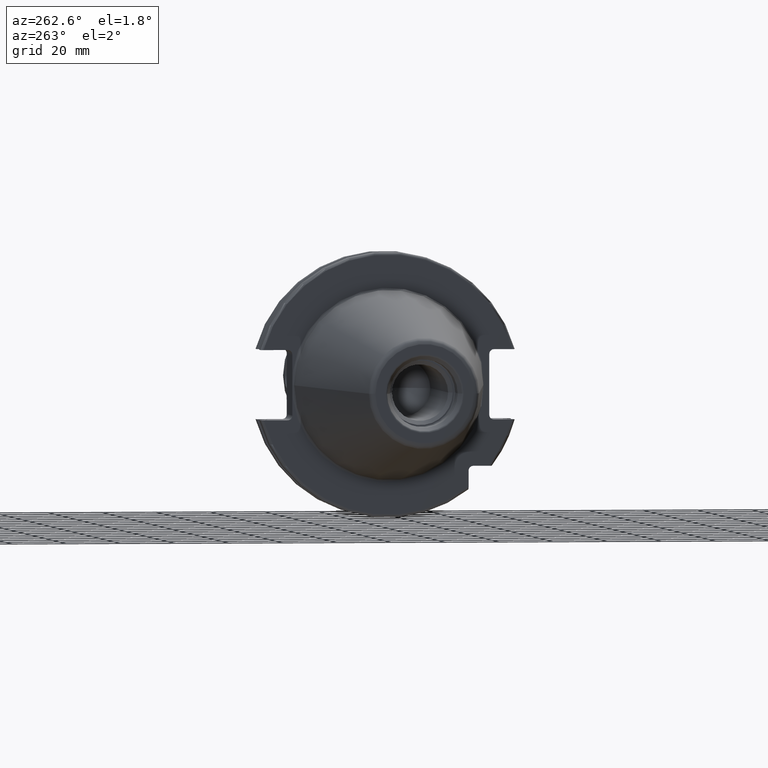
[diagram: clean part render]
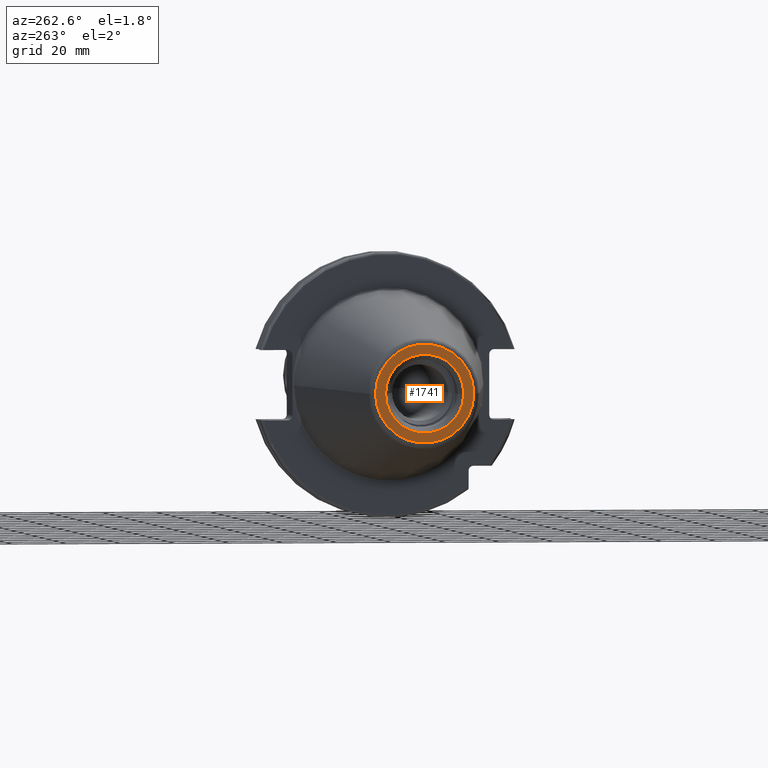
[diagram: same view with one face highlighted and labeled with its STEP entity id]
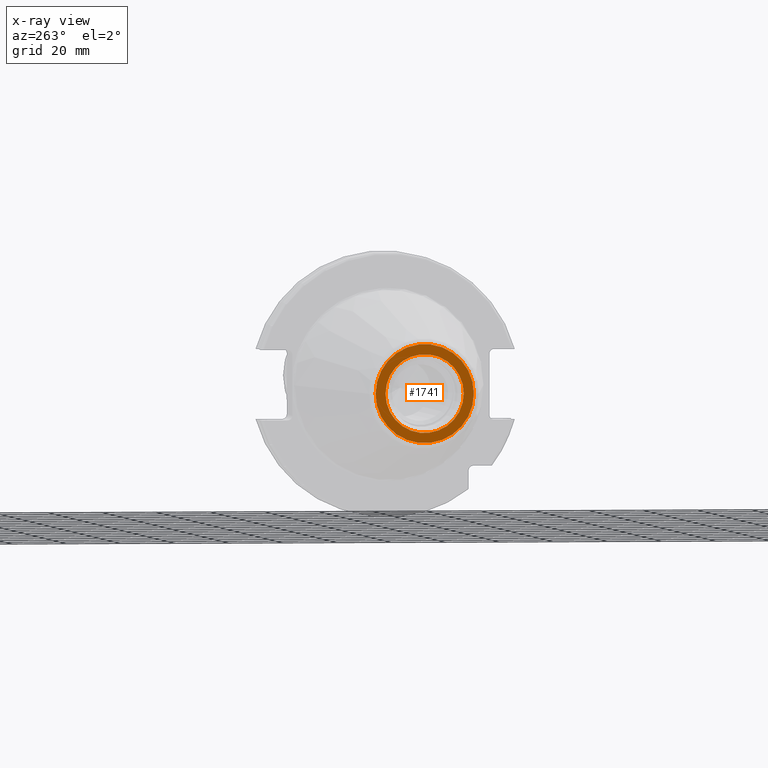
[diagram: x-ray of the same camera — body ghosted, the highlighted face saturated]
A machine part, auxiliary view. The second image highlights one B-rep face of the part: STEP entity #1741.
The next image is the same camera in x-ray: the body ghosted, the highlighted face saturated — about 0% of this face is hidden behind the body in this view.
In plain terms, the highlighted planar face has unit normal (1, 0, 0).
Its self-contained STEP definition (entity closure, byte-faithful):
#2=CARTESIAN_POINT('',(-1.016E2,0.E0,0.E0));
#3=DIRECTION('',(-1.E0,0.E0,0.E0));
#4=DIRECTION('',(0.E0,1.E0,0.E0));
#5=AXIS2_PLACEMENT_3D('',#2,#3,#4);
#7=CARTESIAN_POINT('',(-1.016E2,0.E0,0.E0));
#8=DIRECTION('',(1.E0,0.E0,0.E0));
#9=DIRECTION('',(0.E0,1.E0,0.E0));
#10=AXIS2_PLACEMENT_3D('',#7,#8,#9);
#12=CARTESIAN_POINT('',(-1.016E2,0.E0,0.E0));
#13=DIRECTION('',(1.E0,0.E0,0.E0));
#14=DIRECTION('',(0.E0,1.E0,0.E0));
#15=AXIS2_PLACEMENT_3D('',#12,#13,#14);
#17=CARTESIAN_POINT('',(-1.016E2,0.E0,0.E0));
#18=DIRECTION('',(1.E0,0.E0,0.E0));
#19=DIRECTION('',(0.E0,-1.E0,0.E0));
#20=AXIS2_PLACEMENT_3D('',#17,#18,#19);
#1449=CARTESIAN_POINT('',(-1.016E2,1.816144700117E1,0.E0));
#1451=VERTEX_POINT('',#1449);
#1453=CARTESIAN_POINT('',(-1.016E2,-1.816144700117E1,0.E0));
#1455=VERTEX_POINT('',#1453);
#1512=CARTESIAN_POINT('',(-1.016E2,1.446188021535E1,0.E0));
#1513=CARTESIAN_POINT('',(-1.016E2,-1.446188021535E1,0.E0));
#1514=VERTEX_POINT('',#1512);
#1515=VERTEX_POINT('',#1513);
#1724=CARTESIAN_POINT('',(-1.016E2,0.E0,0.E0));
#1725=DIRECTION('',(1.E0,0.E0,0.E0));
#1726=DIRECTION('',(0.E0,-1.E0,0.E0));
#1727=AXIS2_PLACEMENT_3D('',#1724,#1725,#1726);
#1728=PLANE('',#1727);
#1730=ORIENTED_EDGE('',*,*,#1729,.F.);
#1732=ORIENTED_EDGE('',*,*,#1731,.T.);
#1733=EDGE_LOOP('',(#1730,#1732));
#1734=FACE_OUTER_BOUND('',#1733,.F.);
#1736=ORIENTED_EDGE('',*,*,#1735,.F.);
#1738=ORIENTED_EDGE('',*,*,#1737,.F.);
#1739=EDGE_LOOP('',(#1736,#1738));
#1740=FACE_BOUND('',#1739,.F.);
#1741=ADVANCED_FACE('',(#1734,#1740),#1728,.F.);
#6=CIRCLE('',#5,1.816144700117E1);
#11=CIRCLE('',#10,1.816144700117E1);
#16=CIRCLE('',#15,1.446188021535E1);
#21=CIRCLE('',#20,1.446188021535E1);
#1729=EDGE_CURVE('',#1451,#1455,#6,.T.);
#1731=EDGE_CURVE('',#1451,#1455,#11,.T.);
#1735=EDGE_CURVE('',#1514,#1515,#16,.T.);
#1737=EDGE_CURVE('',#1515,#1514,#21,.T.);